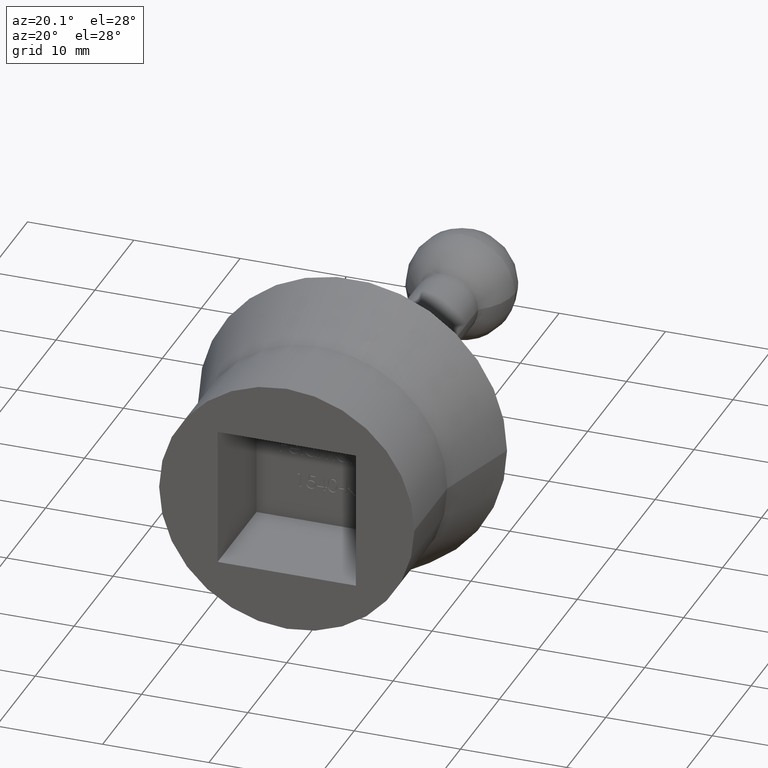
[diagram: clean part render]
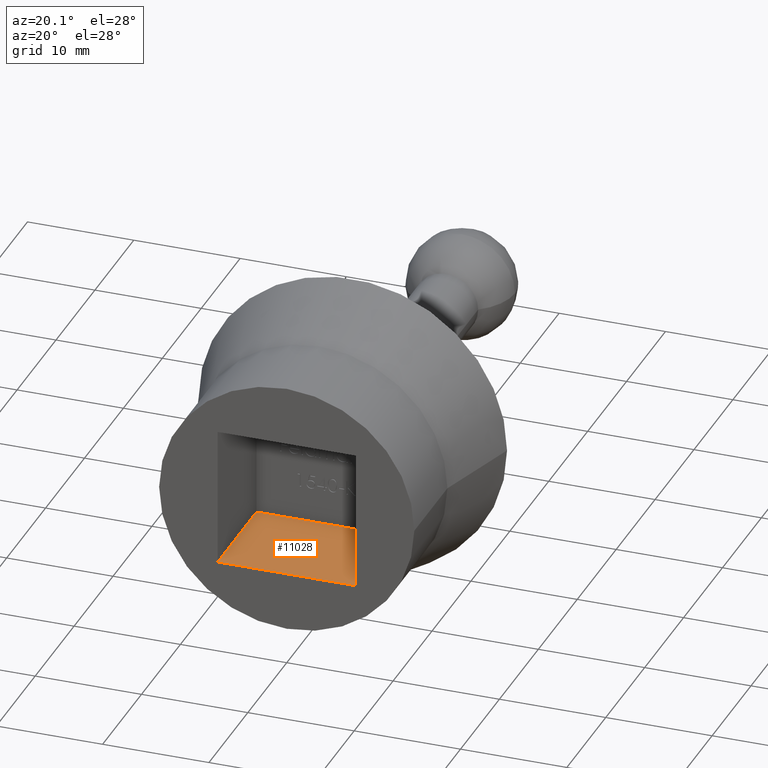
[diagram: same view with one face highlighted and labeled with its STEP entity id]
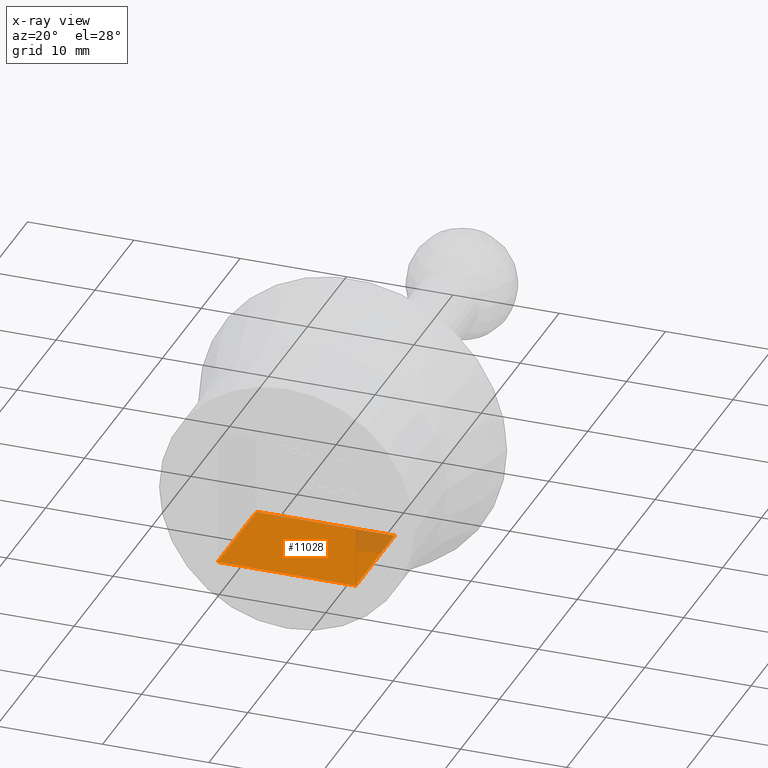
[diagram: x-ray of the same camera — body ghosted, the highlighted face saturated]
A machine part, auxiliary view. The second image highlights one B-rep face of the part: STEP entity #11028.
The next image is the same camera in x-ray: the body ghosted, the highlighted face saturated — about 8% of this face is hidden behind the body in this view.
In plain terms, the highlighted planar face has unit normal (0, -0, -1).
Its self-contained STEP definition (entity closure, byte-faithful):
#62 = VERTEX_POINT ( 'NONE', #10868 ) ;
#392 = EDGE_CURVE ( 'NONE', #1993, #2109, #6202, .T. ) ;
#738 = DIRECTION ( 'NONE',  ( -6.123233995736767114E-18, -1.000000000000000000, -0.000000000000000000 ) ) ;
#963 = VECTOR ( 'NONE', #2655, 1000.000000000000000 ) ;
#1513 = ORIENTED_EDGE ( 'NONE', *, *, #8178, .F. ) ;
#1787 = ORIENTED_EDGE ( 'NONE', *, *, #7591, .T. ) ;
#1993 = VERTEX_POINT ( 'NONE', #7052 ) ;
#2109 = VERTEX_POINT ( 'NONE', #5505 ) ;
#2304 = VECTOR ( 'NONE', #11005, 1000.000000000000000 ) ;
#2568 = DIRECTION ( 'NONE',  ( 1.000000000000000000, -6.123233995736767885E-18, 1.334402673828313339E-16 ) ) ;
#2655 = DIRECTION ( 'NONE',  ( -6.123233995736767114E-18, -1.000000000000000000, -0.000000000000000000 ) ) ;
#2786 = PLANE ( 'NONE',  #10607 ) ;
#2851 = LINE ( 'NONE', #3253, #3277 ) ;
#3253 = CARTESIAN_POINT ( 'NONE',  ( 6.499999999999999112, 10.00000000000000000, -6.499999999999997335 ) ) ;
#3277 = VECTOR ( 'NONE', #738, 1000.000000000000000 ) ;
#3317 = EDGE_LOOP ( 'NONE', ( #1787, #1513, #9004, #8531 ) ) ;
#4318 = CARTESIAN_POINT ( 'NONE',  ( -6.500000000000000888, 10.00000000000000000, -6.499999999999999112 ) ) ;
#4498 = DIRECTION ( 'NONE',  ( 1.334402673828313339E-16, -8.170859816387568742E-34, -1.000000000000000000 ) ) ;
#4506 = CARTESIAN_POINT ( 'NONE',  ( -6.500000000000000888, 10.00000000000000000, -6.499999999999999112 ) ) ;
#4663 = LINE ( 'NONE', #10117, #2304 ) ;
#5505 = CARTESIAN_POINT ( 'NONE',  ( 6.499999999999999112, 10.00000000000000000, -6.499999999999997335 ) ) ;
#6161 = CARTESIAN_POINT ( 'NONE',  ( -6.500000000000000888, 10.00000000000000000, -6.499999999999999112 ) ) ;
#6202 = LINE ( 'NONE', #4318, #8122 ) ;
#6701 = EDGE_CURVE ( 'NONE', #1993, #7842, #8084, .T. ) ;
#6961 = CARTESIAN_POINT ( 'NONE',  ( -6.500000000000000888, 3.980102097228898355E-17, -6.499999999999999112 ) ) ;
#7052 = CARTESIAN_POINT ( 'NONE',  ( -6.500000000000000888, 10.00000000000000000, -6.499999999999999112 ) ) ;
#7591 = EDGE_CURVE ( 'NONE', #7842, #62, #4663, .T. ) ;
#7842 = VERTEX_POINT ( 'NONE', #6961 ) ;
#8084 = LINE ( 'NONE', #4506, #963 ) ;
#8122 = VECTOR ( 'NONE', #2568, 1000.000000000000000 ) ;
#8178 = EDGE_CURVE ( 'NONE', #2109, #62, #2851, .T. ) ;
#8531 = ORIENTED_EDGE ( 'NONE', *, *, #6701, .T. ) ;
#8790 = DIRECTION ( 'NONE',  ( -1.000000000000000000, 0.000000000000000000, -1.334402673828313339E-16 ) ) ;
#9004 = ORIENTED_EDGE ( 'NONE', *, *, #392, .F. ) ;
#10117 = CARTESIAN_POINT ( 'NONE',  ( -6.500000000000000888, 3.980102097228898355E-17, -6.499999999999999112 ) ) ;
#10510 = FACE_OUTER_BOUND ( 'NONE', #3317, .T. ) ;
#10607 = AXIS2_PLACEMENT_3D ( 'NONE', #6161, #4498, #8790 ) ;
#10868 = CARTESIAN_POINT ( 'NONE',  ( 6.499999999999999112, -3.980102097228897738E-17, -6.499999999999997335 ) ) ;
#11005 = DIRECTION ( 'NONE',  ( 1.000000000000000000, -6.123233995736767885E-18, 1.334402673828313339E-16 ) ) ;
#11028 = ADVANCED_FACE ( 'NONE', ( #10510 ), #2786, .F. ) ;